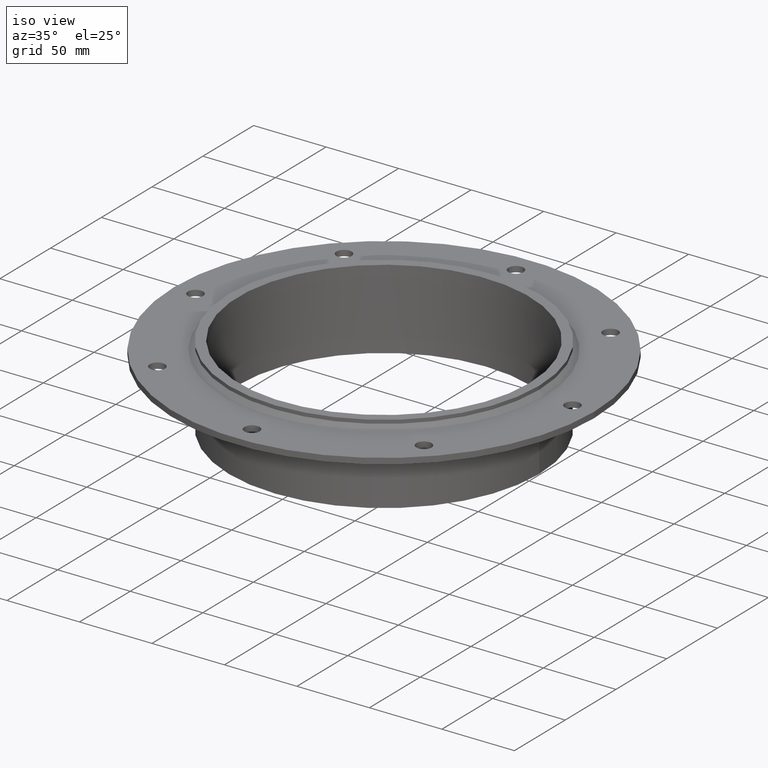
[diagram: clean part render]
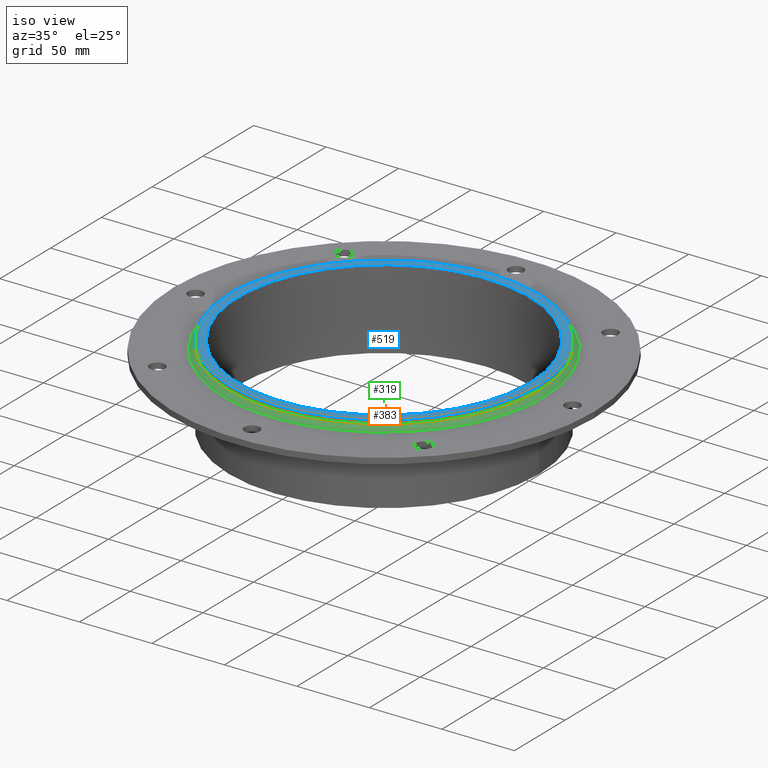
[diagram: same view with three faces highlighted in distinct colors, each labeled with its STEP entity id]
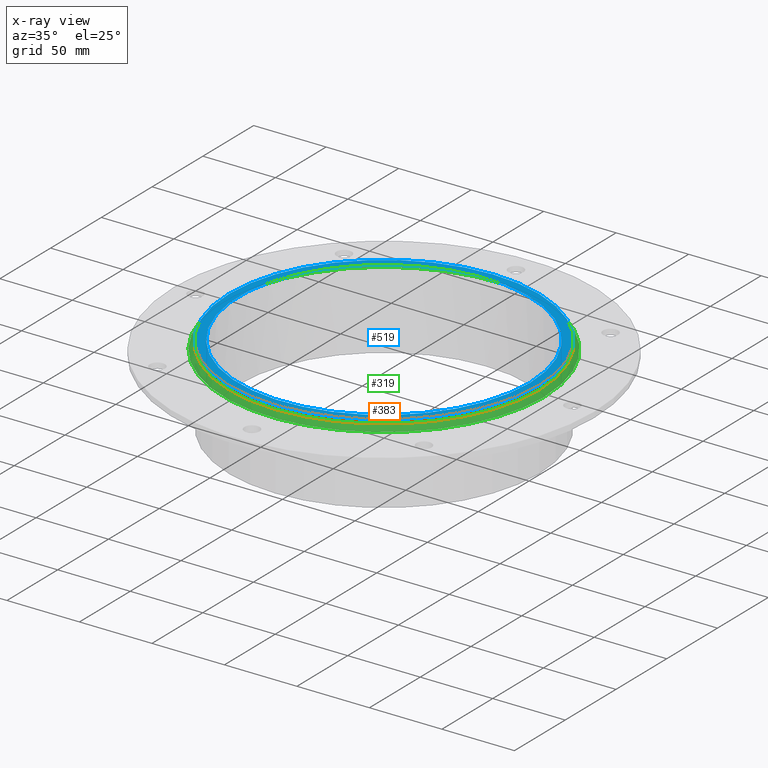
[diagram: x-ray of the same camera — body ghosted, the three highlighted faces saturated]
A machine part, iso view with three faces highlighted in distinct colors.
The next image is the same camera in x-ray (body ghosted, the three faces saturated) — at least one of them is partly hidden behind the body in this view.
Their STEP definitions:

[orange] entity #383 — the highlighted cylindrical surface (bore or boss wall) has radius 107 mm, axis along (0, 0, -1).
#308=CARTESIAN_POINT('',(107.00000000000001,-1.310372E-014,-2.500000000000003));
#309=VERTEX_POINT('',#308);
#310=CARTESIAN_POINT('',(0.0,0.0,-2.500000000000003));
#311=DIRECTION('',(0.0,0.0,-1.0));
#312=DIRECTION('',(-1.0,0.0,0.0));
#313=AXIS2_PLACEMENT_3D('',#310,#311,#312);
#314=CIRCLE('',#313,107.00000000000001);
#315=EDGE_CURVE('',#309,#309,#314,.T.);
#364=CARTESIAN_POINT('',(0.0,0.0,0.0));
#365=DIRECTION('',(0.0,0.0,-1.0));
#366=DIRECTION('',(-1.0,0.0,0.0));
#367=AXIS2_PLACEMENT_3D('',#364,#365,#366);
#368=CYLINDRICAL_SURFACE('',#367,107.00000000000001);
#369=CARTESIAN_POINT('',(107.00000000000001,1.310372E-014,0.0));
#370=VERTEX_POINT('',#369);
#371=CARTESIAN_POINT('',(0.0,0.0,0.0));
#372=DIRECTION('',(0.0,0.0,-1.0));
#373=DIRECTION('',(-1.0,0.0,0.0));
#374=AXIS2_PLACEMENT_3D('',#371,#372,#373);
#375=CIRCLE('',#374,107.00000000000001);
#376=EDGE_CURVE('',#370,#370,#375,.T.);
#377=ORIENTED_EDGE('',*,*,#376,.T.);
#378=EDGE_LOOP('',(#377));
#379=FACE_OUTER_BOUND('',#378,.T.);
#380=ORIENTED_EDGE('',*,*,#315,.F.);
#381=EDGE_LOOP('',(#380));
#382=FACE_BOUND('',#381,.T.);
#383=ADVANCED_FACE('',(#379,#382),#368,.T.);

[blue] entity #519 — the highlighted planar face has unit normal (0, 0, 1).
#369=CARTESIAN_POINT('',(107.00000000000001,1.310372E-014,0.0));
#370=VERTEX_POINT('',#369);
#371=CARTESIAN_POINT('',(0.0,0.0,0.0));
#372=DIRECTION('',(0.0,0.0,-1.0));
#373=DIRECTION('',(-1.0,0.0,0.0));
#374=AXIS2_PLACEMENT_3D('',#371,#372,#373);
#375=CIRCLE('',#374,107.00000000000001);
#376=EDGE_CURVE('',#370,#370,#375,.T.);
#464=CARTESIAN_POINT('',(100.5,0.0,0.0));
#465=VERTEX_POINT('',#464);
#466=CARTESIAN_POINT('',(0.0,0.0,0.0));
#467=DIRECTION('',(0.0,0.0,-1.0));
#468=DIRECTION('',(1.0,0.0,0.0));
#469=AXIS2_PLACEMENT_3D('',#466,#467,#468);
#470=CIRCLE('',#469,100.5);
#471=EDGE_CURVE('',#465,#465,#470,.T.);
#508=CARTESIAN_POINT('',(-1.091977E-015,0.0,0.0));
#509=DIRECTION('',(0.0,0.0,1.0));
#510=DIRECTION('',(1.0,0.0,0.0));
#511=AXIS2_PLACEMENT_3D('',#508,#509,#510);
#512=PLANE('',#511);
#513=ORIENTED_EDGE('',*,*,#376,.F.);
#514=EDGE_LOOP('',(#513));
#515=FACE_OUTER_BOUND('',#514,.T.);
#516=ORIENTED_EDGE('',*,*,#471,.T.);
#517=EDGE_LOOP('',(#516));
#518=FACE_BOUND('',#517,.T.);
#519=ADVANCED_FACE('',(#515,#518),#512,.T.);

[green] entity #319 — the highlighted conical surface has half-angle 45 deg.
#292=CARTESIAN_POINT('',(0.0,0.0,-4.250000000000003));
#293=DIRECTION('',(0.0,0.0,-1.0));
#294=DIRECTION('',(-1.0,0.0,0.0));
#295=AXIS2_PLACEMENT_3D('',#292,#293,#294);
#296=CONICAL_SURFACE('',#295,108.75,44.999999999999979);
#297=CARTESIAN_POINT('',(110.5,1.353235E-014,-6.000000000000004));
#298=VERTEX_POINT('',#297);
#299=CARTESIAN_POINT('',(0.0,0.0,-6.000000000000004));
#300=DIRECTION('',(0.0,0.0,1.0));
#301=DIRECTION('',(-1.0,0.0,0.0));
#302=AXIS2_PLACEMENT_3D('',#299,#300,#301);
#303=CIRCLE('',#302,110.5);
#304=EDGE_CURVE('',#298,#298,#303,.T.);
#305=ORIENTED_EDGE('',*,*,#304,.T.);
#306=EDGE_LOOP('',(#305));
#307=FACE_OUTER_BOUND('',#306,.T.);
#308=CARTESIAN_POINT('',(107.00000000000001,-1.310372E-014,-2.500000000000003));
#309=VERTEX_POINT('',#308);
#310=CARTESIAN_POINT('',(0.0,0.0,-2.500000000000003));
#311=DIRECTION('',(0.0,0.0,-1.0));
#312=DIRECTION('',(-1.0,0.0,0.0));
#313=AXIS2_PLACEMENT_3D('',#310,#311,#312);
#314=CIRCLE('',#313,107.00000000000001);
#315=EDGE_CURVE('',#309,#309,#314,.T.);
#316=ORIENTED_EDGE('',*,*,#315,.T.);
#317=EDGE_LOOP('',(#316));
#318=FACE_BOUND('',#317,.T.);
#319=ADVANCED_FACE('',(#307,#318),#296,.T.);